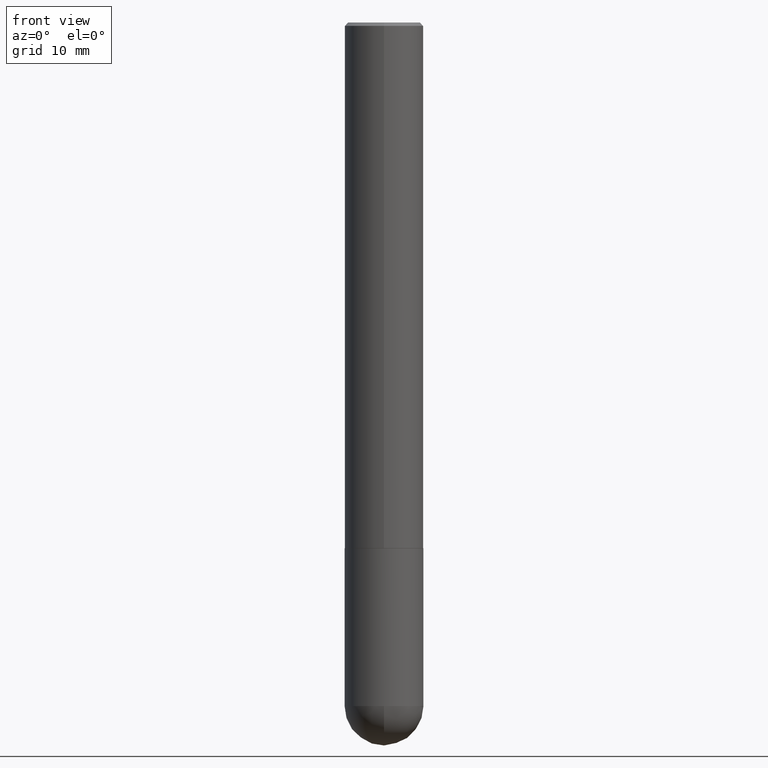
[diagram: clean part render]
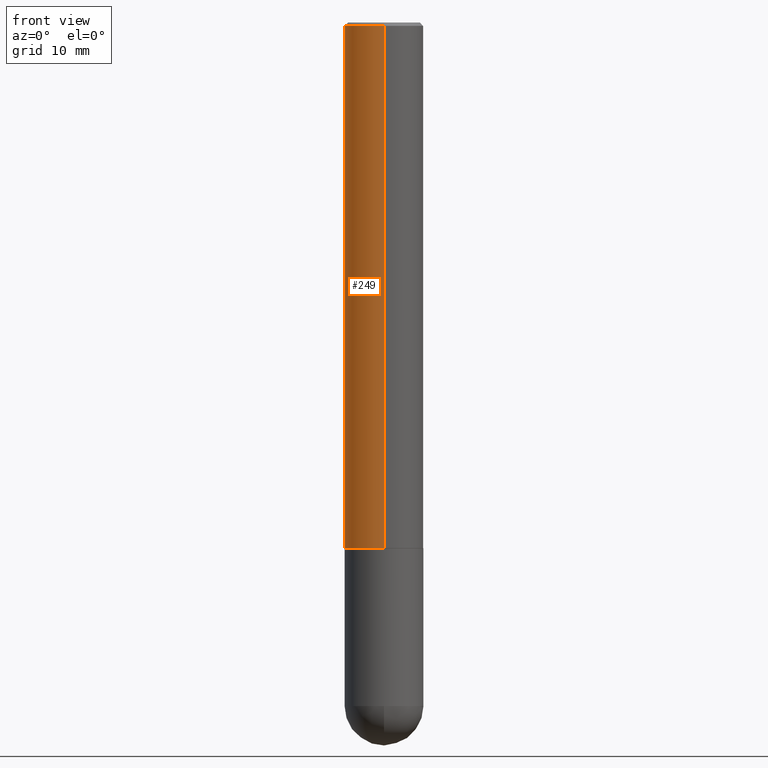
[diagram: same view with one face highlighted and labeled with its STEP entity id]
A machine part, front view. The second image highlights one B-rep face of the part: STEP entity #249.
In plain terms, the highlighted cylindrical surface (partial cylindrical patch) has radius 5.9995 mm, axis along (-0, 0, 1).
Its self-contained STEP definition (entity closure, byte-faithful):
#20 = ORIENTED_EDGE ( 'NONE', *, *, #216, .T. ) ;
#30 = CARTESIAN_POINT ( 'NONE',  ( -1.649375784469421978E-15, -0.2362000000000114008, -3.148599999999999177 ) ) ;
#34 = VERTEX_POINT ( 'NONE', #136 ) ;
#51 = LINE ( 'NONE', #186, #192 ) ;
#78 = EDGE_LOOP ( 'NONE', ( #329, #149, #20, #361 ) ) ;
#80 = VERTEX_POINT ( 'NONE', #223 ) ;
#96 = EDGE_CURVE ( 'NONE', #34, #243, #372, .T. ) ;
#123 = AXIS2_PLACEMENT_3D ( 'NONE', #342, #125, #348 ) ;
#125 = DIRECTION ( 'NONE',  ( -2.446209613660721864E-29, 3.490420460373964582E-15, 1.000000000000000000 ) ) ;
#127 = CYLINDRICAL_SURFACE ( 'NONE', #364, 0.2362000000000001598 ) ;
#136 = CARTESIAN_POINT ( 'NONE',  ( 1.649375784469495934E-15, 0.2361999999999998545, -0.02000000000000087472 ) ) ;
#141 = CARTESIAN_POINT ( 'NONE',  ( 4.892419227321456446E-31, -6.980840920747946766E-17, -0.02000000000000005246 ) ) ;
#149 = ORIENTED_EDGE ( 'NONE', *, *, #271, .T. ) ;
#153 = DIRECTION ( 'NONE',  ( -2.446209613660722145E-29, 3.490420460373964582E-15, 1.000000000000000000 ) ) ;
#158 = CARTESIAN_POINT ( 'NONE',  ( -1.620449627073634487E-15, -0.2361999999999999933, -0.01999999999999922673 ) ) ;
#186 = CARTESIAN_POINT ( 'NONE',  ( -1.649375784469497117E-15, -0.2362000000000001598, 8.244373127403310428E-16 ) ) ;
#191 = CARTESIAN_POINT ( 'NONE',  ( 0.000000000000000000, 0.000000000000000000, 0.000000000000000000 ) ) ;
#192 = VECTOR ( 'NONE', #153, 39.37007874015748143 ) ;
#216 = EDGE_CURVE ( 'NONE', #261, #243, #51, .T. ) ;
#222 = FACE_OUTER_BOUND ( 'NONE', #78, .T. ) ;
#223 = CARTESIAN_POINT ( 'NONE',  ( 1.678301941865397612E-15, 0.2361999999999894462, -3.148600000000001398 ) ) ;
#243 = VERTEX_POINT ( 'NONE', #158 ) ;
#244 = CIRCLE ( 'NONE', #123, 0.2362000000000004096 ) ;
#246 = EDGE_CURVE ( 'NONE', #80, #34, #253, .T. ) ;
#249 = ADVANCED_FACE ( 'NONE', ( #222 ), #127, .T. ) ;
#252 = DIRECTION ( 'NONE',  ( -2.446209613660721864E-29, 3.490420460373964582E-15, 1.000000000000000000 ) ) ;
#253 = LINE ( 'NONE', #376, #301 ) ;
#261 = VERTEX_POINT ( 'NONE', #30 ) ;
#271 = EDGE_CURVE ( 'NONE', #80, #261, #244, .T. ) ;
#281 = AXIS2_PLACEMENT_3D ( 'NONE', #141, #325, #349 ) ;
#301 = VECTOR ( 'NONE', #412, 39.37007874015748143 ) ;
#325 = DIRECTION ( 'NONE',  ( -2.446209613660721864E-29, 3.490420460373964582E-15, 1.000000000000000000 ) ) ;
#329 = ORIENTED_EDGE ( 'NONE', *, *, #246, .F. ) ;
#342 = CARTESIAN_POINT ( 'NONE',  ( 7.702135589572149804E-29, -1.098993786153346755E-14, -3.148600000000000509 ) ) ;
#348 = DIRECTION ( 'NONE',  ( -6.982962677686265922E-15, -1.000000000000000000, 4.626330217890361448E-15 ) ) ;
#349 = DIRECTION ( 'NONE',  ( -6.982962677686265922E-15, -1.000000000000000000, 3.487819265831412533E-15 ) ) ;
#361 = ORIENTED_EDGE ( 'NONE', *, *, #96, .F. ) ;
#364 = AXIS2_PLACEMENT_3D ( 'NONE', #191, #252, #379 ) ;
#372 = CIRCLE ( 'NONE', #281, 0.2361999999999999378 ) ;
#376 = CARTESIAN_POINT ( 'NONE',  ( 1.678301941865357577E-15, 0.2362000000000001598, -8.244373127403310428E-16 ) ) ;
#379 = DIRECTION ( 'NONE',  ( -6.982962677686265922E-15, -1.000000000000000000, 3.490420460373964977E-15 ) ) ;
#412 = DIRECTION ( 'NONE',  ( -2.446209613660722145E-29, 3.490420460373964582E-15, 1.000000000000000000 ) ) ;